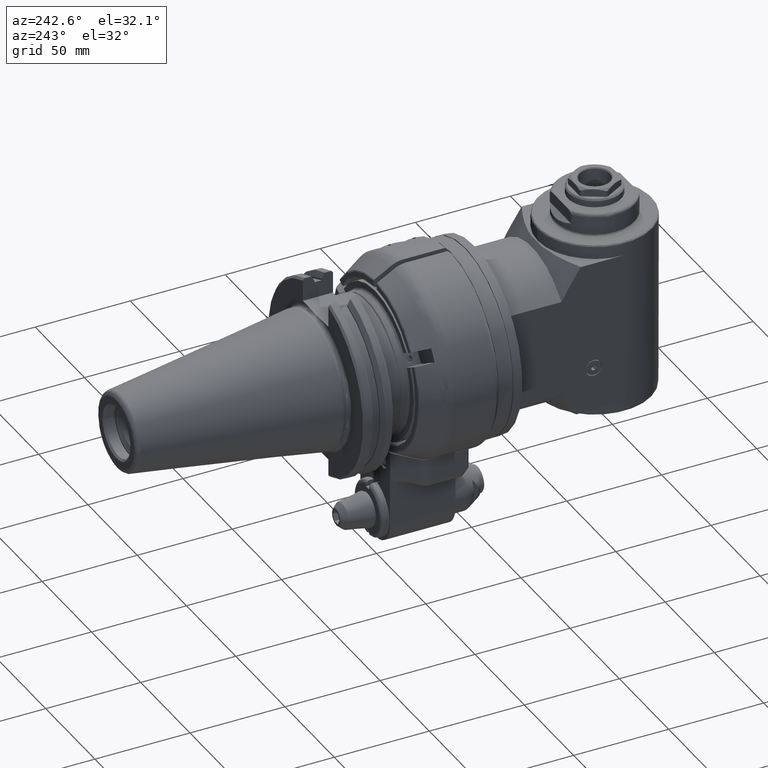
[diagram: clean part render]
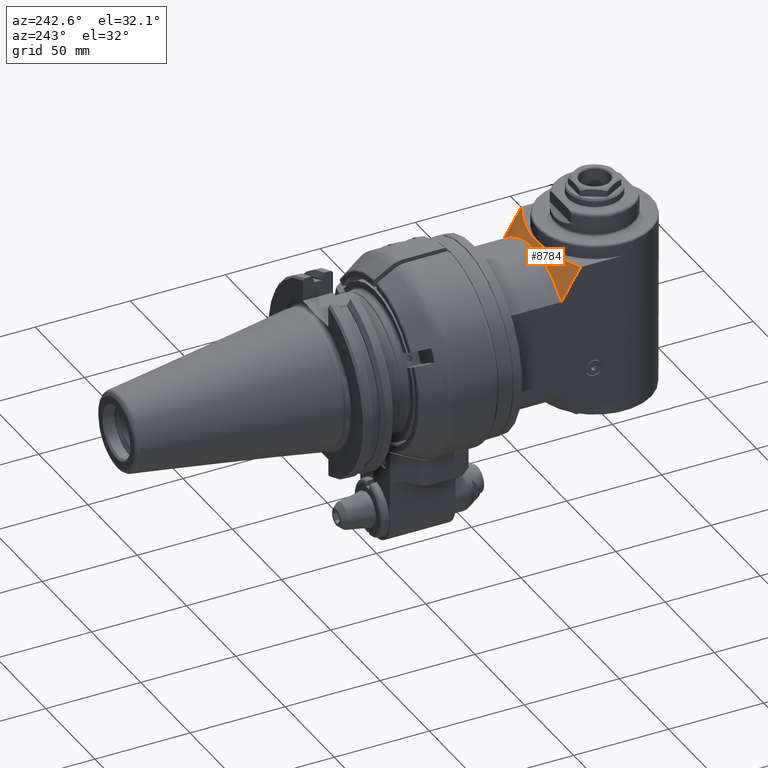
[diagram: same view with one face highlighted and labeled with its STEP entity id]
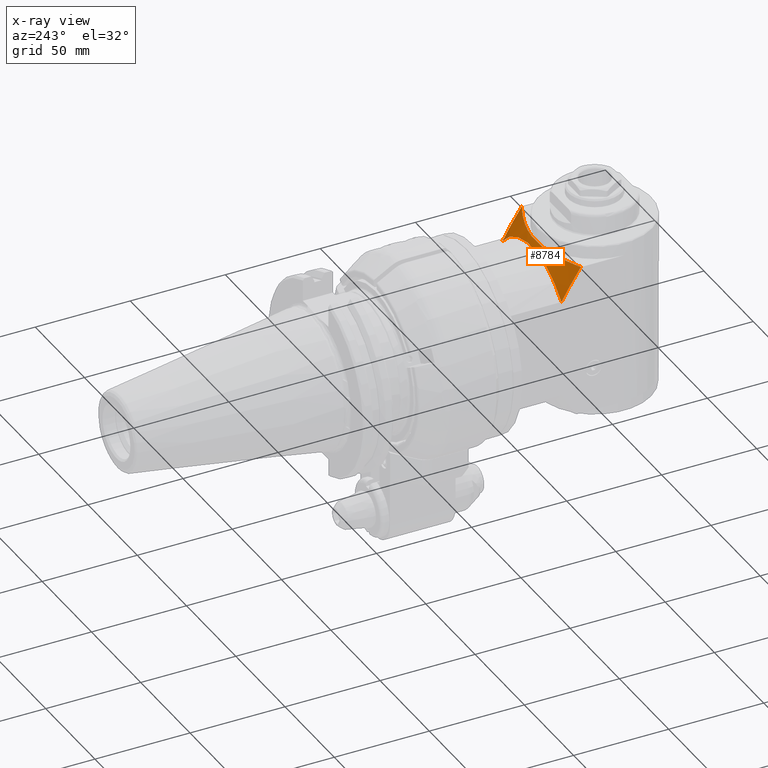
[diagram: x-ray of the same camera — body ghosted, the highlighted face saturated]
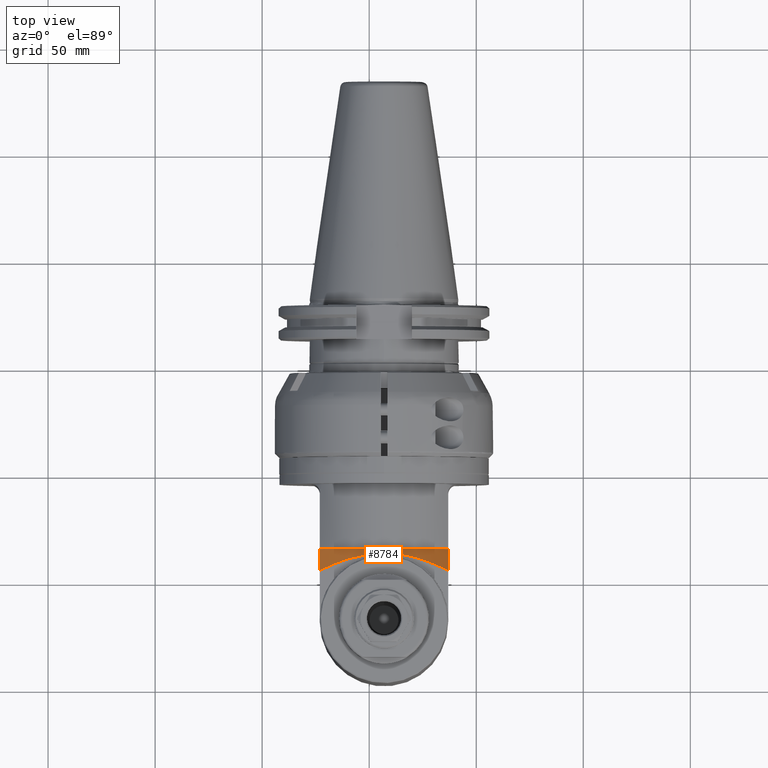
[diagram: same view with one face highlighted and labeled with its STEP entity id]
A machine part, auxiliary view. The second image highlights one B-rep face of the part: STEP entity #8784.
The next image is the same camera in x-ray: the body ghosted, the highlighted face saturated — about 0% of this face is hidden behind the body in this view.
A second angle (top view) of the same face is appended — the face is thin or edge-on in the first view.
In plain terms, the highlighted conical surface has half-angle 50 deg.
Its self-contained STEP definition (entity closure, byte-faithful):
#183=(
BOUNDED_CURVE()
B_SPLINE_CURVE(2,(#17455,#17456,#17457),.UNSPECIFIED.,.F.,.F.)
B_SPLINE_CURVE_WITH_KNOTS((3,3),(2.01815760786574,3.84982281623074),
 .UNSPECIFIED.)
CURVE()
GEOMETRIC_REPRESENTATION_ITEM()
RATIONAL_B_SPLINE_CURVE((1.34804919977888,1.4847826910311,1.58301614602027))
REPRESENTATION_ITEM('')
);
#184=(
BOUNDED_CURVE()
B_SPLINE_CURVE(2,(#17477,#17478,#17479),.UNSPECIFIED.,.F.,.F.)
B_SPLINE_CURVE_WITH_KNOTS((3,3),(-11.8392122377826,-3.20325237767774),
 .UNSPECIFIED.)
CURVE()
GEOMETRIC_REPRESENTATION_ITEM()
RATIONAL_B_SPLINE_CURVE((1.30343415761593,1.60179494114862,1.30343415762042))
REPRESENTATION_ITEM('')
);
#185=(
BOUNDED_CURVE()
B_SPLINE_CURVE(2,(#17483,#17484,#17485),.UNSPECIFIED.,.F.,.F.)
B_SPLINE_CURVE_WITH_KNOTS((3,3),(13.1968686512931,15.0285338596581),
 .UNSPECIFIED.)
CURVE()
GEOMETRIC_REPRESENTATION_ITEM()
RATIONAL_B_SPLINE_CURVE((1.58301614602027,1.4847826910311,1.34804919977888))
REPRESENTATION_ITEM('')
);
#277=CONICAL_SURFACE('',#9815,45.55697580113,0.872664625997165);
#2446=FACE_OUTER_BOUND('',#3034,.T.);
#3034=EDGE_LOOP('',(#7966,#7967,#7968,#7969));
#3554=CIRCLE('',#9810,39.5);
#4323=VERTEX_POINT('',#17452);
#4324=VERTEX_POINT('',#17454);
#4333=VERTEX_POINT('',#17476);
#4334=VERTEX_POINT('',#17482);
#5533=EDGE_CURVE('',#4324,#4323,#183,.T.);
#5543=EDGE_CURVE('',#4333,#4324,#184,.F.);
#5545=EDGE_CURVE('',#4334,#4333,#185,.T.);
#5575=EDGE_CURVE('',#4323,#4334,#3554,.T.);
#7966=ORIENTED_EDGE('',*,*,#5575,.T.);
#7967=ORIENTED_EDGE('',*,*,#5545,.T.);
#7968=ORIENTED_EDGE('',*,*,#5543,.T.);
#7969=ORIENTED_EDGE('',*,*,#5533,.T.);
#8784=ADVANCED_FACE('',(#2446),#277,.T.);
#9810=AXIS2_PLACEMENT_3D('',#17563,#12287,#12288);
#9815=AXIS2_PLACEMENT_3D('',#17592,#12297,#12298);
#12287=DIRECTION('center_axis',(0.,-1.,0.));
#12288=DIRECTION('ref_axis',(1.,0.,0.));
#12297=DIRECTION('center_axis',(0.,-1.,0.));
#12298=DIRECTION('ref_axis',(1.,0.,-1.22464679914735E-16));
#17452=CARTESIAN_POINT('',(14.85537210298,10.,-30.));
#17454=CARTESIAN_POINT('',(31.16004178792,-0.164812321552,-30.));
#17455=CARTESIAN_POINT('Ctrl Pts',(31.1600417879129,-0.164812321545516,
-30.));
#17456=CARTESIAN_POINT('Ctrl Pts',(21.9238225567032,6.14171008589093,-30.));
#17457=CARTESIAN_POINT('Ctrl Pts',(14.8553721027819,10.0000000001096,-30.));
#17476=CARTESIAN_POINT('',(31.16004178792,-0.164812321552,30.));
#17477=CARTESIAN_POINT('Ctrl Pts',(31.16004178792,-0.164812321821206,-30.0000000005554));
#17478=CARTESIAN_POINT('Ctrl Pts',(31.16004178792,14.4666902978147,-1.8366197451769E-10));
#17479=CARTESIAN_POINT('Ctrl Pts',(31.16004178792,-0.164812321550654,30.0000000000007));
#17482=CARTESIAN_POINT('',(14.85537210298,10.,30.));
#17483=CARTESIAN_POINT('Ctrl Pts',(14.8553721027819,10.0000000001096,30.));
#17484=CARTESIAN_POINT('Ctrl Pts',(21.9238225567032,6.14171008589091,30.));
#17485=CARTESIAN_POINT('Ctrl Pts',(31.1600417879129,-0.164812321545501,
30.));
#17563=CARTESIAN_POINT('Origin',(-10.83995821208,10.,0.));
#17592=CARTESIAN_POINT('Origin',(-10.83995821208,4.917593839224,0.));